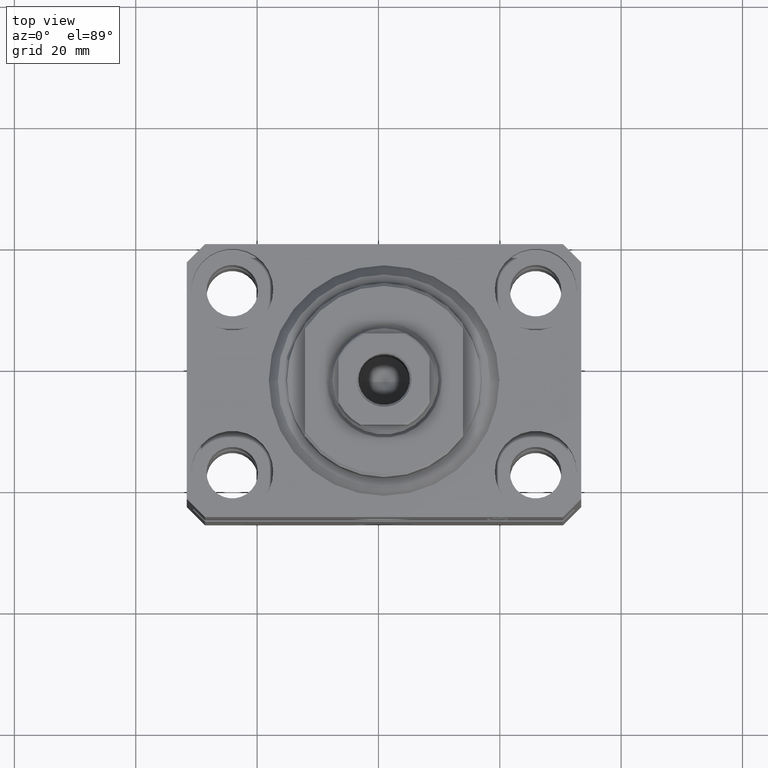
[diagram: clean part render]
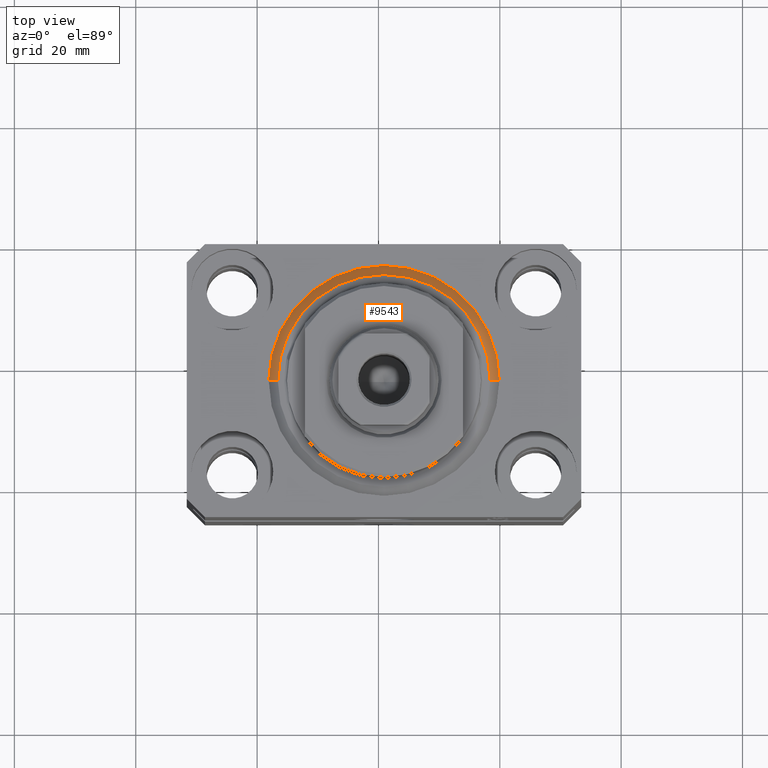
[diagram: same view with one face highlighted and labeled with its STEP entity id]
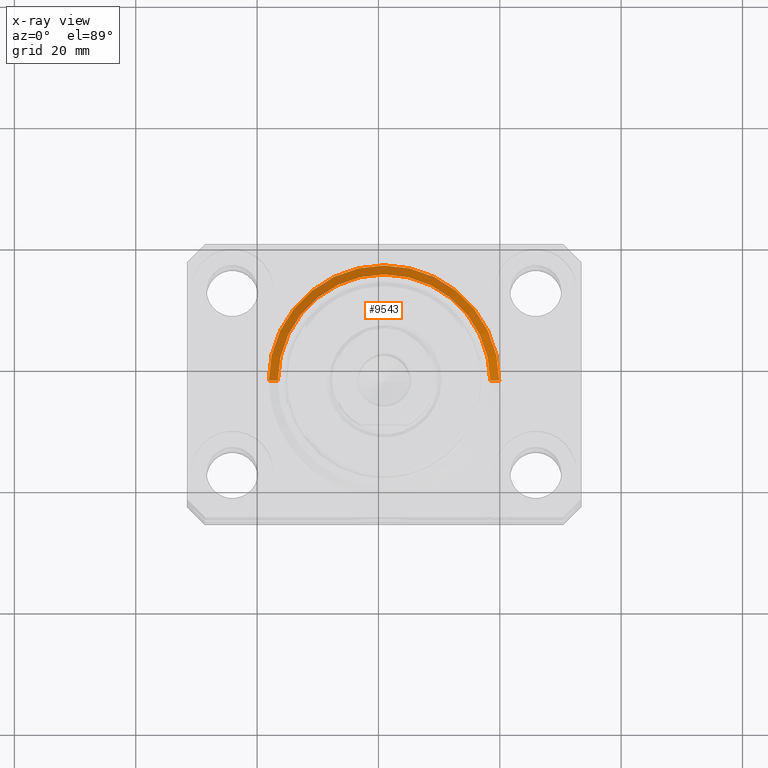
[diagram: x-ray of the same camera — body ghosted, the highlighted face saturated]
A machine part, top view. The second image highlights one B-rep face of the part: STEP entity #9543.
The next image is the same camera in x-ray: the body ghosted, the highlighted face saturated — about 0% of this face is hidden behind the body in this view.
In plain terms, the highlighted conical surface has half-angle 45 deg.
Its self-contained STEP definition (entity closure, byte-faithful):
#21 = CARTESIAN_POINT ( 'NONE',  ( -19.00000000000000000, 0.000000000000000000, 1.500000000000004885 ) ) ;
#2065 = VECTOR ( 'NONE', #23266, 1000.000000000000000 ) ;
#2153 = DIRECTION ( 'NONE',  ( -0.000000000000000000, -0.000000000000000000, 1.000000000000000000 ) ) ;
#2729 = CIRCLE ( 'NONE', #27856, 19.00000000000000000 ) ;
#3058 = VECTOR ( 'NONE', #3779, 1000.000000000000000 ) ;
#3419 = CIRCLE ( 'NONE', #27797, 17.49999999999999289 ) ;
#3512 = AXIS2_PLACEMENT_3D ( 'NONE', #24601, #38984, #11116 ) ;
#3779 = DIRECTION ( 'NONE',  ( -0.7071067811865483499, 8.659560562354943952E-17, 0.7071067811865467956 ) ) ;
#3940 = FACE_OUTER_BOUND ( 'NONE', #16405, .T. ) ;
#5688 = EDGE_CURVE ( 'NONE', #36449, #40811, #3419, .T. ) ;
#6423 = LINE ( 'NONE', #37653, #2065 ) ;
#7473 = CARTESIAN_POINT ( 'NONE',  ( 19.00000000000000000, 2.326828918379970970E-15, 1.500000000000004885 ) ) ;
#9440 = EDGE_CURVE ( 'NONE', #40811, #24206, #6423, .T. ) ;
#9543 = ADVANCED_FACE ( 'NONE', ( #3940 ), #29329, .T. ) ;
#11116 = DIRECTION ( 'NONE',  ( 1.000000000000000000, 0.000000000000000000, 0.000000000000000000 ) ) ;
#12254 = CARTESIAN_POINT ( 'NONE',  ( 0.000000000000000000, 0.000000000000000000, 1.500000000000004885 ) ) ;
#12551 = CARTESIAN_POINT ( 'NONE',  ( -17.49999999999999289, 2.234980408443919215E-15, 0.000000000000000000 ) ) ;
#13769 = ORIENTED_EDGE ( 'NONE', *, *, #5688, .F. ) ;
#14003 = CARTESIAN_POINT ( 'NONE',  ( 0.000000000000000000, 0.000000000000000000, 0.000000000000000000 ) ) ;
#16405 = EDGE_LOOP ( 'NONE', ( #13769, #34153, #33630, #24297 ) ) ;
#17691 = LINE ( 'NONE', #41741, #3058 ) ;
#21918 = CARTESIAN_POINT ( 'NONE',  ( 17.49999999999999289, 0.000000000000000000, 0.000000000000000000 ) ) ;
#23266 = DIRECTION ( 'NONE',  ( 0.7071067811865483499, 0.000000000000000000, 0.7071067811865467956 ) ) ;
#24206 = VERTEX_POINT ( 'NONE', #7473 ) ;
#24297 = ORIENTED_EDGE ( 'NONE', *, *, #9440, .F. ) ;
#24350 = DIRECTION ( 'NONE',  ( 1.000000000000000000, 0.000000000000000000, 0.000000000000000000 ) ) ;
#24516 = VERTEX_POINT ( 'NONE', #21 ) ;
#24601 = CARTESIAN_POINT ( 'NONE',  ( 0.000000000000000000, 0.000000000000000000, 1.500000000000004885 ) ) ;
#24772 = EDGE_CURVE ( 'NONE', #36449, #24516, #17691, .T. ) ;
#27727 = DIRECTION ( 'NONE',  ( -0.000000000000000000, -0.000000000000000000, -1.000000000000000000 ) ) ;
#27797 = AXIS2_PLACEMENT_3D ( 'NONE', #14003, #27727, #24350 ) ;
#27856 = AXIS2_PLACEMENT_3D ( 'NONE', #12254, #2153, #42597 ) ;
#29329 = CONICAL_SURFACE ( 'NONE', #3512, 19.00000000000000000, 0.7853981633974492782 ) ;
#33630 = ORIENTED_EDGE ( 'NONE', *, *, #43529, .F. ) ;
#34153 = ORIENTED_EDGE ( 'NONE', *, *, #24772, .T. ) ;
#36449 = VERTEX_POINT ( 'NONE', #12551 ) ;
#37653 = CARTESIAN_POINT ( 'NONE',  ( 19.00000000000000000, 0.000000000000000000, 1.500000000000004885 ) ) ;
#38984 = DIRECTION ( 'NONE',  ( -0.000000000000000000, -0.000000000000000000, 1.000000000000000000 ) ) ;
#40811 = VERTEX_POINT ( 'NONE', #21918 ) ;
#41741 = CARTESIAN_POINT ( 'NONE',  ( -19.00000000000000000, 2.326828918379970970E-15, 1.500000000000004885 ) ) ;
#42597 = DIRECTION ( 'NONE',  ( 1.000000000000000000, 0.000000000000000000, 0.000000000000000000 ) ) ;
#43529 = EDGE_CURVE ( 'NONE', #24206, #24516, #2729, .T. ) ;